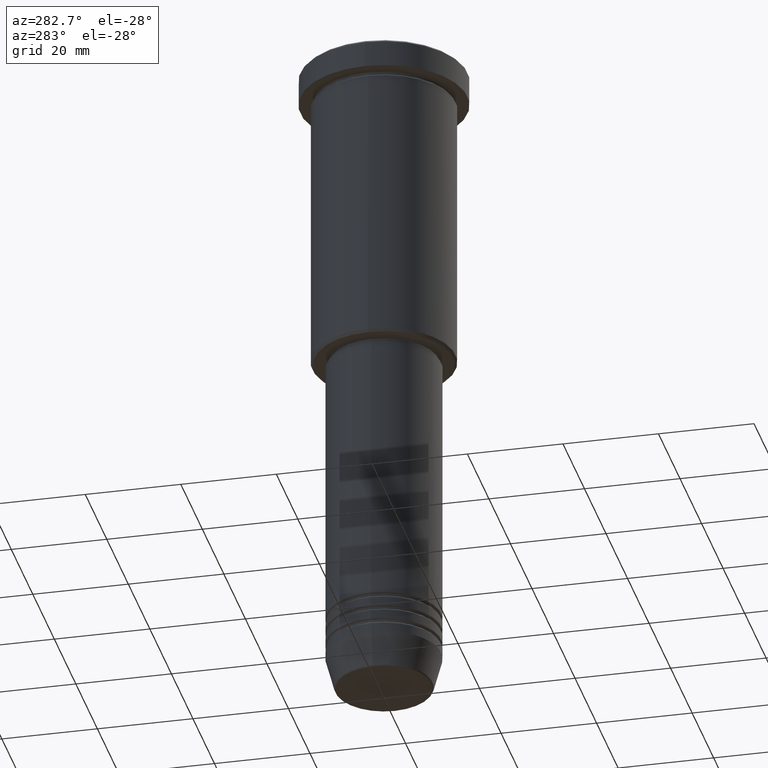
[diagram: clean part render]
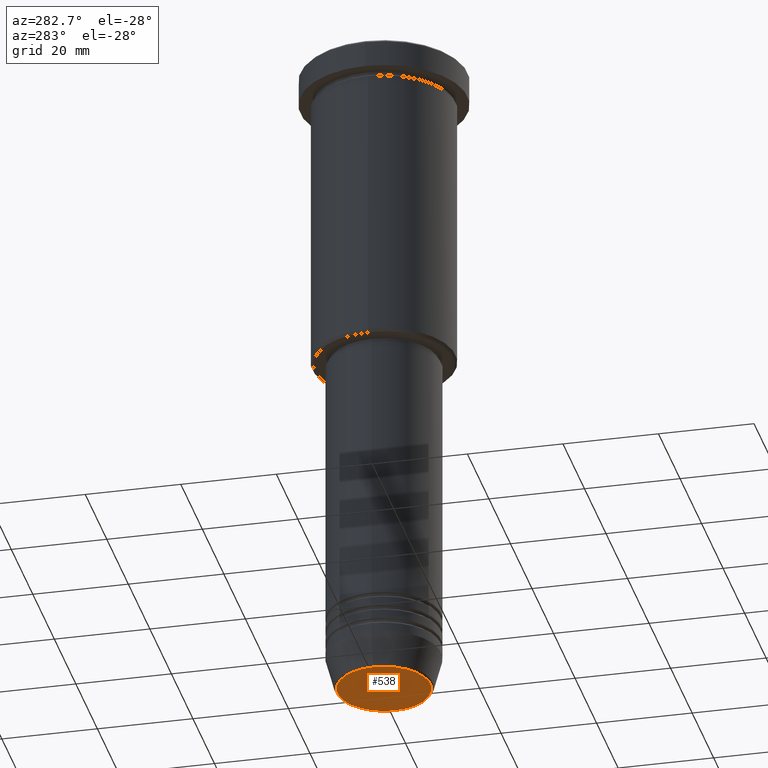
[diagram: same view with one face highlighted and labeled with its STEP entity id]
A machine part, auxiliary view. The second image highlights one B-rep face of the part: STEP entity #538.
In plain terms, the highlighted planar face has unit normal (0, -0, 1).
Its self-contained STEP definition (entity closure, byte-faithful):
#94 = PLANE ( 'NONE',  #449 ) ;
#104 = EDGE_LOOP ( 'NONE', ( #976, #1043 ) ) ;
#238 = CARTESIAN_POINT ( 'NONE',  ( 0.000000000000000000, 0.000000000000000000, -141.0000000000000000 ) ) ;
#269 = DIRECTION ( 'NONE',  ( 0.000000000000000000, -0.000000000000000000, 1.000000000000000000 ) ) ;
#313 = AXIS2_PLACEMENT_3D ( 'NONE', #238, #493, #592 ) ;
#449 = AXIS2_PLACEMENT_3D ( 'NONE', #1178, #269, #1070 ) ;
#451 = CARTESIAN_POINT ( 'NONE',  ( -9.740692158992658278, 1.222463696683474999E-15, -141.0000000000000000 ) ) ;
#457 = DIRECTION ( 'NONE',  ( 0.000000000000000000, 0.000000000000000000, -1.000000000000000000 ) ) ;
#493 = DIRECTION ( 'NONE',  ( 0.000000000000000000, 0.000000000000000000, -1.000000000000000000 ) ) ;
#503 = EDGE_CURVE ( 'NONE', #623, #986, #673, .T. ) ;
#538 = ADVANCED_FACE ( 'NONE', ( #705 ), #94, .F. ) ;
#592 = DIRECTION ( 'NONE',  ( 1.000000000000000000, 0.000000000000000000, 0.000000000000000000 ) ) ;
#623 = VERTEX_POINT ( 'NONE', #685 ) ;
#673 = CIRCLE ( 'NONE', #313, 9.740692158992658278 ) ;
#674 = CIRCLE ( 'NONE', #893, 9.740692158992658278 ) ;
#685 = CARTESIAN_POINT ( 'NONE',  ( 9.740692158992658278, 0.000000000000000000, -141.0000000000000000 ) ) ;
#705 = FACE_OUTER_BOUND ( 'NONE', #104, .T. ) ;
#728 = EDGE_CURVE ( 'NONE', #986, #623, #674, .T. ) ;
#802 = CARTESIAN_POINT ( 'NONE',  ( 0.000000000000000000, 0.000000000000000000, -141.0000000000000000 ) ) ;
#893 = AXIS2_PLACEMENT_3D ( 'NONE', #802, #457, #1087 ) ;
#976 = ORIENTED_EDGE ( 'NONE', *, *, #503, .T. ) ;
#986 = VERTEX_POINT ( 'NONE', #451 ) ;
#1043 = ORIENTED_EDGE ( 'NONE', *, *, #728, .T. ) ;
#1070 = DIRECTION ( 'NONE',  ( 1.000000000000000000, 0.000000000000000000, 0.000000000000000000 ) ) ;
#1087 = DIRECTION ( 'NONE',  ( 1.000000000000000000, 0.000000000000000000, 0.000000000000000000 ) ) ;
#1178 = CARTESIAN_POINT ( 'NONE',  ( 0.000000000000000000, 0.000000000000000000, -141.0000000000000000 ) ) ;